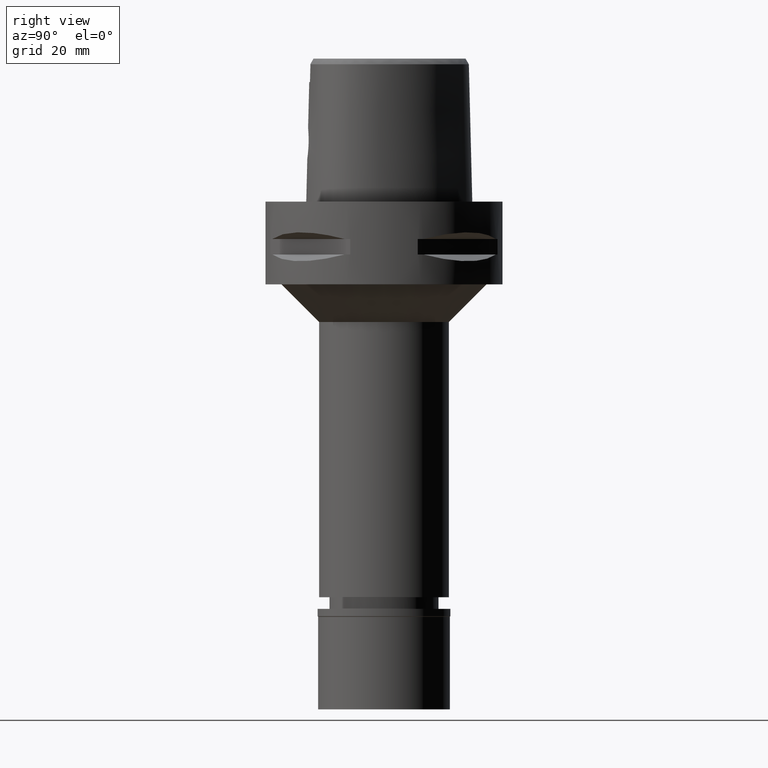
[diagram: clean part render]
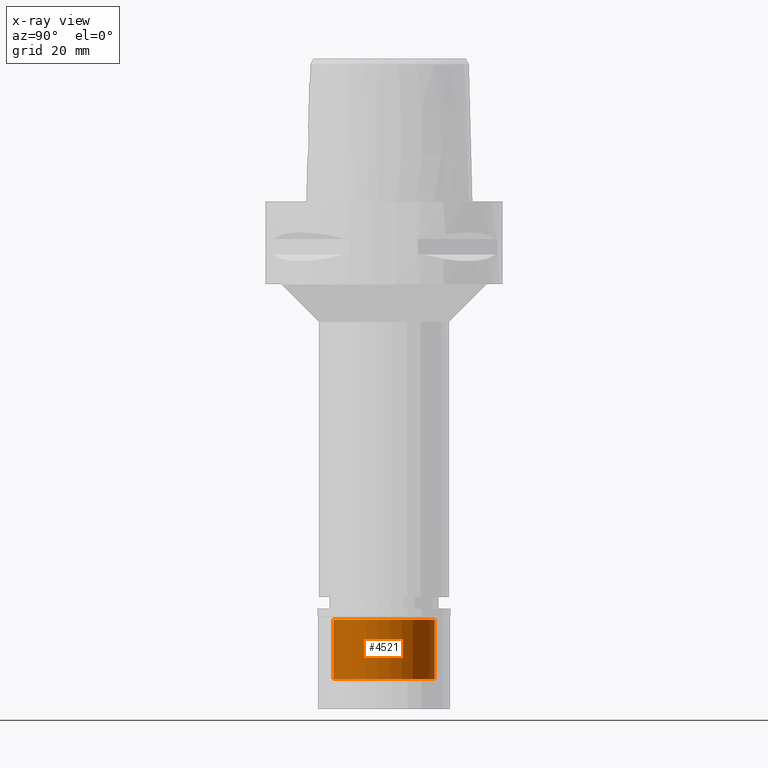
[diagram: x-ray — body ghosted, one internal face saturated and labeled with its STEP entity id]
A machine part, right view, then the same camera in x-ray: the body is ghosted and one INTERNAL B-rep face — a face not visible from any outside direction — is saturated and labeled: STEP entity #4521.
In plain terms, the highlighted cylindrical surface (partial cylindrical patch) has radius 13.5 mm, axis along (0, 0, -1).
Its self-contained STEP definition (entity closure, byte-faithful):
#246 = DIRECTION ( 'NONE',  ( 0.0000000000000000000, 0.0000000000000000000, 1.000000000000000000 ) ) ;
#425 = EDGE_LOOP ( 'NONE', ( #1977, #3850, #4571, #1811 ) ) ;
#681 = VERTEX_POINT ( 'NONE', #3829 ) ;
#723 = DIRECTION ( 'NONE',  ( 0.0000000000000000000, 0.0000000000000000000, -1.000000000000000000 ) ) ;
#747 = CYLINDRICAL_SURFACE ( 'NONE', #2355, 13.50000000000000000 ) ;
#1213 = CARTESIAN_POINT ( 'NONE',  ( 0.0000000000000000000, 13.50000000000000000, -18.70000000000000284 ) ) ;
#1515 = DIRECTION ( 'NONE',  ( 0.0000000000000000000, 0.0000000000000000000, 1.000000000000000000 ) ) ;
#1520 = CARTESIAN_POINT ( 'NONE',  ( 0.0000000000000000000, -13.50000000000000000, -18.70000000000000284 ) ) ;
#1575 = DIRECTION ( 'NONE',  ( 0.0000000000000000000, 0.0000000000000000000, -1.000000000000000000 ) ) ;
#1626 = DIRECTION ( 'NONE',  ( 0.0000000000000000000, 1.000000000000000000, 0.0000000000000000000 ) ) ;
#1811 = ORIENTED_EDGE ( 'NONE', *, *, #4470, .F. ) ;
#1977 = ORIENTED_EDGE ( 'NONE', *, *, #3446, .T. ) ;
#2021 = CIRCLE ( 'NONE', #4607, 13.50000000000000000 ) ;
#2030 = CARTESIAN_POINT ( 'NONE',  ( 0.0000000000000000000, 13.50000000000000000, -18.70000000000000284 ) ) ;
#2041 = VERTEX_POINT ( 'NONE', #4327 ) ;
#2311 = CARTESIAN_POINT ( 'NONE',  ( 0.0000000000000000000, 0.0000000000000000000, -18.70000000000000284 ) ) ;
#2343 = VECTOR ( 'NONE', #3120, 1000.000000000000000 ) ;
#2355 = AXIS2_PLACEMENT_3D ( 'NONE', #4199, #723, #3462 ) ;
#2684 = FACE_OUTER_BOUND ( 'NONE', #425, .T. ) ;
#2749 = CIRCLE ( 'NONE', #3397, 13.50000000000000000 ) ;
#2986 = EDGE_CURVE ( 'NONE', #681, #2041, #2749, .T. ) ;
#3120 = DIRECTION ( 'NONE',  ( 0.0000000000000000000, 0.0000000000000000000, 1.000000000000000000 ) ) ;
#3357 = DIRECTION ( 'NONE',  ( 0.0000000000000000000, -1.000000000000000000, 0.0000000000000000000 ) ) ;
#3397 = AXIS2_PLACEMENT_3D ( 'NONE', #3782, #246, #3357 ) ;
#3446 = EDGE_CURVE ( 'NONE', #3715, #4005, #2021, .T. ) ;
#3462 = DIRECTION ( 'NONE',  ( 0.0000000000000000000, -1.000000000000000000, 0.0000000000000000000 ) ) ;
#3519 = LINE ( 'NONE', #3823, #2343 ) ;
#3715 = VERTEX_POINT ( 'NONE', #2030 ) ;
#3782 = CARTESIAN_POINT ( 'NONE',  ( 0.0000000000000000000, 0.0000000000000000000, -2.899999999999999911 ) ) ;
#3823 = CARTESIAN_POINT ( 'NONE',  ( 0.0000000000000000000, -13.50000000000000000, -18.70000000000000284 ) ) ;
#3829 = CARTESIAN_POINT ( 'NONE',  ( 0.0000000000000000000, -13.50000000000000000, -2.899999999999999911 ) ) ;
#3850 = ORIENTED_EDGE ( 'NONE', *, *, #3933, .T. ) ;
#3933 = EDGE_CURVE ( 'NONE', #4005, #681, #3519, .T. ) ;
#4005 = VERTEX_POINT ( 'NONE', #1520 ) ;
#4043 = VECTOR ( 'NONE', #1515, 1000.000000000000000 ) ;
#4199 = CARTESIAN_POINT ( 'NONE',  ( 0.0000000000000000000, 0.0000000000000000000, 0.0000000000000000000 ) ) ;
#4327 = CARTESIAN_POINT ( 'NONE',  ( 0.0000000000000000000, 13.50000000000000000, -2.899999999999999911 ) ) ;
#4470 = EDGE_CURVE ( 'NONE', #3715, #2041, #4602, .T. ) ;
#4521 = ADVANCED_FACE ( 'NONE', ( #2684 ), #747, .F. ) ;
#4571 = ORIENTED_EDGE ( 'NONE', *, *, #2986, .T. ) ;
#4602 = LINE ( 'NONE', #1213, #4043 ) ;
#4607 = AXIS2_PLACEMENT_3D ( 'NONE', #2311, #1575, #1626 ) ;